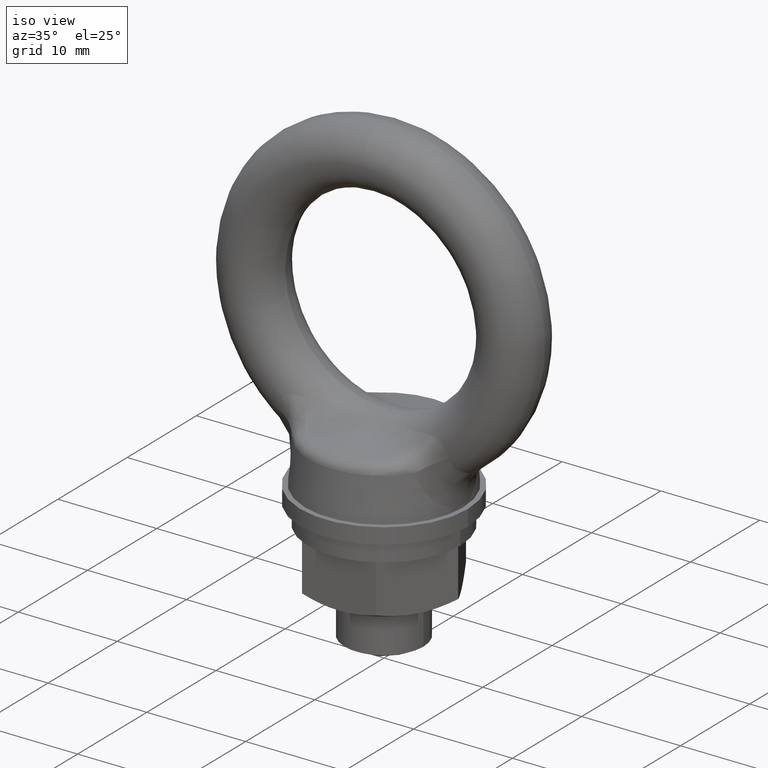
[diagram: clean part render]
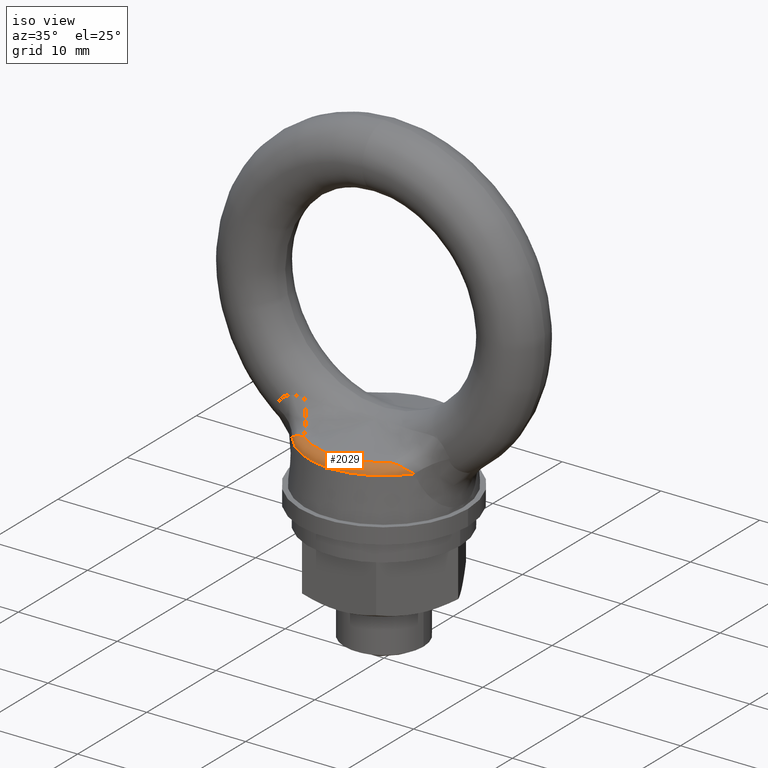
[diagram: same view with one face highlighted and labeled with its STEP entity id]
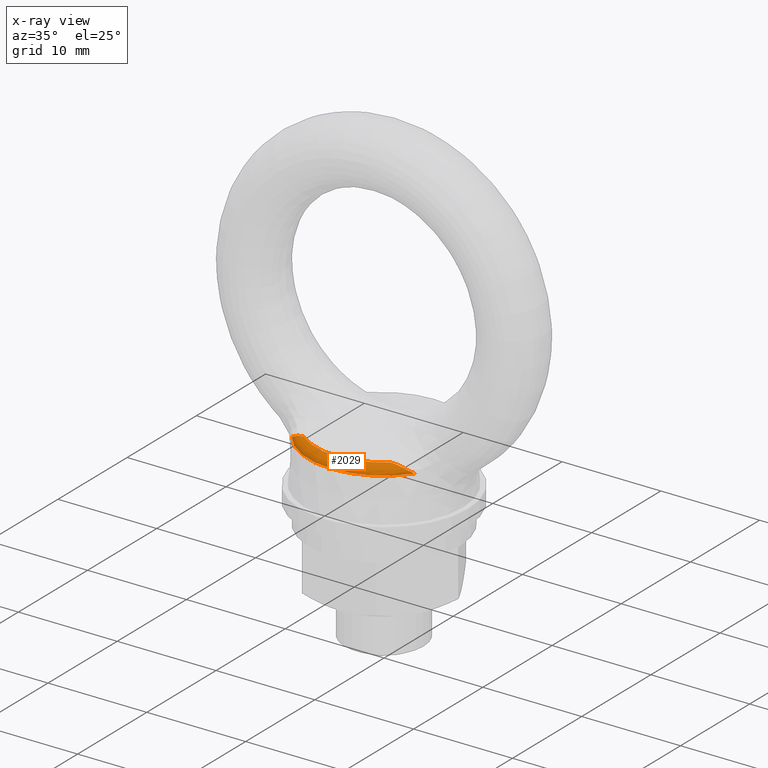
[diagram: x-ray of the same camera — body ghosted, the highlighted face saturated]
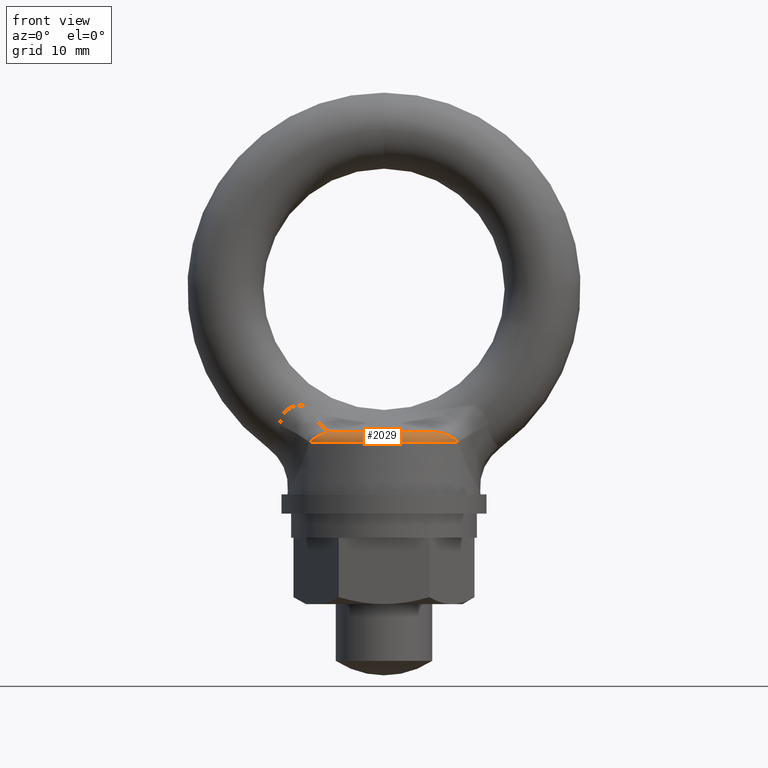
[diagram: same view with one face highlighted and labeled with its STEP entity id]
A machine part, iso view. The second image highlights one B-rep face of the part: STEP entity #2029.
The next image is the same camera in x-ray: the body ghosted, the highlighted face saturated — about 0% of this face is hidden behind the body in this view.
A second angle (front view) of the same face is appended — the face is thin or edge-on in the first view.
In plain terms, the highlighted toroidal blend (fillet) surface has major radius 6.6276 mm and minor (blend) radius 1 mm.
Its self-contained STEP definition (entity closure, byte-faithful):
#892 = CARTESIAN_POINT ( 'NONE',  ( 6.108660724279736200, -4.550018531910130700, -12.60205899224966000 ) ) ;
#893 = CARTESIAN_POINT ( 'NONE',  ( 5.101589738699382300, -5.137912545774836900, -11.98862065408465000 ) ) ;
#894 = CARTESIAN_POINT ( 'NONE',  ( 5.271149626895899900, -5.086419492993115900, -12.06098680549957100 ) ) ;
#916 = CARTESIAN_POINT ( 'NONE',  ( 5.730262366533233700, -4.865395672142509100, -12.31595642161145700 ) ) ;
#952 = CARTESIAN_POINT ( 'NONE',  ( 4.383375090677879400, -5.307113808483039800, -11.82035886595320000 ) ) ;
#953 = CARTESIAN_POINT ( 'NONE',  ( 4.567038090364850900, -5.261714943729949700, -11.84203312021343600 ) ) ;
#995 = CARTESIAN_POINT ( 'NONE',  ( 5.584568233622223800, -4.950264748366878500, -12.22437384947507700 ) ) ;
#996 = CARTESIAN_POINT ( 'NONE',  ( 5.991391992773712300, -4.665719247772408100, -12.50420174390208300 ) ) ;
#1082 = CARTESIAN_POINT ( 'NONE',  ( 4.749132277135748500, -5.224727527998754600, -11.87874773244102000 ) ) ;
#1109 = CARTESIAN_POINT ( 'NONE',  ( 6.210392761138069600, -4.421908272886815500, -12.69996661424272100 ) ) ;
#1258 = B_SPLINE_CURVE_WITH_KNOTS ( 'NONE', 3,
 ( #1109, #892, #996, #916, #995, #894, #893, #1082, #953, #952 ),
 .UNSPECIFIED., .F., .F.,
 ( 4, 2, 2, 2, 4 ),
 ( 3.004629197474318500E-018, 0.0005709606004283224300, 0.001141921200856641800, 0.001712881801284961200, 0.002283842401713280600 ),
 .UNSPECIFIED. ) ;
#1870 = VERTEX_POINT ( 'NONE', #2676 ) ;
#1871 = VERTEX_POINT ( 'NONE', #2678 ) ;
#1877 = EDGE_CURVE ( 'NONE', #1871, #2030, #2666, .T. ) ;
#1884 = ORIENTED_EDGE ( 'NONE', *, *, #2041, .F. ) ;
#1894 = EDGE_LOOP ( 'NONE', ( #1884, #2350, #2344, #1916 ) ) ;
#1916 = ORIENTED_EDGE ( 'NONE', *, *, #1917, .T. ) ;
#1917 = EDGE_CURVE ( 'NONE', #1871, #1870, #2623, .T. ) ;
#2029 = ADVANCED_FACE ( 'NONE', ( #3698 ), #3695, .T. ) ;
#2030 = VERTEX_POINT ( 'NONE', #3696 ) ;
#2041 = EDGE_CURVE ( 'NONE', #2119, #1870, #4610, .T. ) ;
#2119 = VERTEX_POINT ( 'NONE', #5060 ) ;
#2344 = ORIENTED_EDGE ( 'NONE', *, *, #1877, .F. ) ;
#2350 = ORIENTED_EDGE ( 'NONE', *, *, #2375, .T. ) ;
#2375 = EDGE_CURVE ( 'NONE', #2119, #2030, #1258, .T. ) ;
#2610 = CARTESIAN_POINT ( 'NONE',  ( -6.210392761138069600, -4.421908272886815500, -12.69996661424272100 ) ) ;
#2611 = CARTESIAN_POINT ( 'NONE',  ( -6.108701972661631200, -4.549966588185697000, -12.60209868998017900 ) ) ;
#2612 = CARTESIAN_POINT ( 'NONE',  ( -5.992973220570785700, -4.664353236409687600, -12.50542347709155800 ) ) ;
#2613 = CARTESIAN_POINT ( 'NONE',  ( -5.731038722138584300, -4.864957518859458900, -12.31643497619548800 ) ) ;
#2614 = CARTESIAN_POINT ( 'NONE',  ( -5.586593888279771200, -4.949226157643265000, -12.22554908948153400 ) ) ;
#2616 = CARTESIAN_POINT ( 'NONE',  ( -5.272673823770076300, -5.085914180858788200, -12.06166346578539200 ) ) ;
#2617 = CARTESIAN_POINT ( 'NONE',  ( -5.103468905832866800, -5.137391313441046500, -11.98933713538986400 ) ) ;
#2618 = CARTESIAN_POINT ( 'NONE',  ( -4.750873693839806400, -5.224356366637041800, -11.87916124461906800 ) ) ;
#2619 = CARTESIAN_POINT ( 'NONE',  ( -4.567088987813725100, -5.261702362609206300, -11.84203912667232000 ) ) ;
#2620 = CARTESIAN_POINT ( 'NONE',  ( -4.383375090677884800, -5.307113808483039800, -11.82035886595320000 ) ) ;
#2623 = B_SPLINE_CURVE_WITH_KNOTS ( 'NONE', 3,
 ( #2620, #2619, #2618, #2617, #2616, #2614, #2613, #2612, #2611, #2610 ),
 .UNSPECIFIED., .F., .F.,
 ( 4, 2, 2, 2, 4 ),
 ( 0.0000000000000000000, 0.0005702075568999589700, 0.001140415113799917900, 0.001710622670699876900, 0.002280830227599835900 ),
 .UNSPECIFIED. ) ;
#2631 = DIRECTION ( 'NONE',  ( 1.000000000000000000, 0.0000000000000000000, 0.0000000000000000000 ) ) ;
#2632 = DIRECTION ( 'NONE',  ( 0.0000000000000000000, 0.0000000000000000000, 1.000000000000000000 ) ) ;
#2633 = AXIS2_PLACEMENT_3D ( 'NONE', #2641, #2632, #2631 ) ;
#2641 = CARTESIAN_POINT ( 'NONE',  ( 0.0000000000000000000, 0.0000000000000000000, -11.82035886595320000 ) ) ;
#2666 = CIRCLE ( 'NONE', #2633, 6.883272053447160300 ) ;
#2676 = CARTESIAN_POINT ( 'NONE',  ( -6.210392761138069600, -4.421908272886815500, -12.69996661424272100 ) ) ;
#2678 = CARTESIAN_POINT ( 'NONE',  ( -4.383375090677884800, -5.307113808483039800, -11.82035886595320000 ) ) ;
#3695 = TOROIDAL_SURFACE ( 'NONE', #3697, 6.627600371180670400, 1.000000000000000000 ) ;
#3696 = CARTESIAN_POINT ( 'NONE',  ( 4.383375090677879400, -5.307113808483039800, -11.82035886595320000 ) ) ;
#3697 = AXIS2_PLACEMENT_3D ( 'NONE', #3702, #3784, #3783 ) ;
#3698 = FACE_OUTER_BOUND ( 'NONE', #1894, .T. ) ;
#3702 = CARTESIAN_POINT ( 'NONE',  ( 0.0000000000000000000, 0.0000000000000000000, -12.78712253453360000 ) ) ;
#3783 = DIRECTION ( 'NONE',  ( 1.000000000000000000, 0.0000000000000000000, 0.0000000000000000000 ) ) ;
#3784 = DIRECTION ( 'NONE',  ( 0.0000000000000000000, 0.0000000000000000000, 1.000000000000000000 ) ) ;
#4606 = DIRECTION ( 'NONE',  ( 1.000000000000000000, 0.0000000000000000000, 0.0000000000000000000 ) ) ;
#4607 = DIRECTION ( 'NONE',  ( 0.0000000000000000000, 0.0000000000000000000, -1.000000000000000000 ) ) ;
#4608 = CARTESIAN_POINT ( 'NONE',  ( 0.0000000000000000000, 0.0000000000000000000, -12.69996661424272100 ) ) ;
#4609 = AXIS2_PLACEMENT_3D ( 'NONE', #4608, #4607, #4606 ) ;
#4610 = CIRCLE ( 'NONE', #4609, 7.623795053739380400 ) ;
#5060 = CARTESIAN_POINT ( 'NONE',  ( 6.210392761138069600, -4.421908272886815500, -12.69996661424272100 ) ) ;